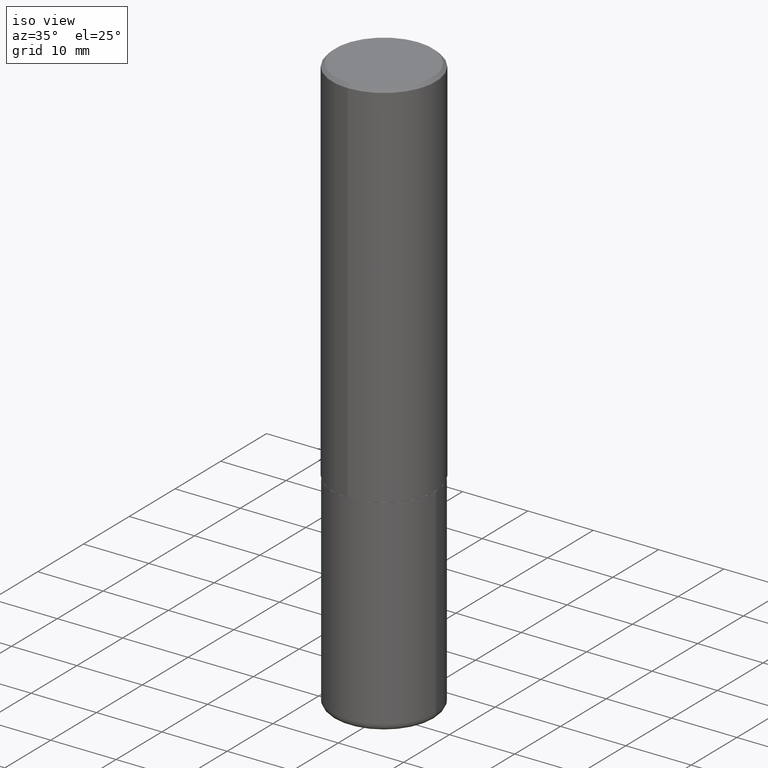
[diagram: clean part render]
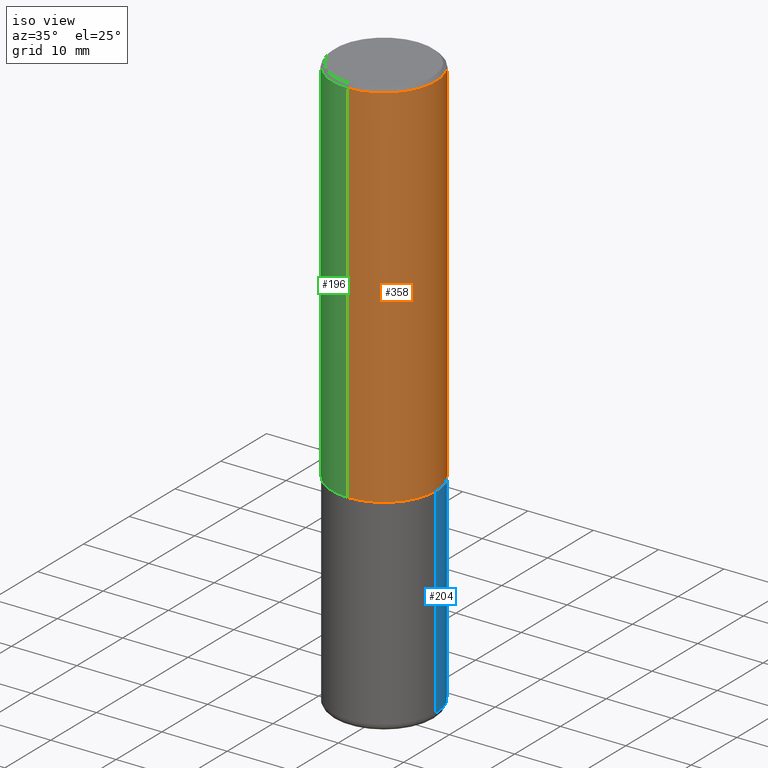
[diagram: same view with three faces highlighted in distinct colors, each labeled with its STEP entity id]
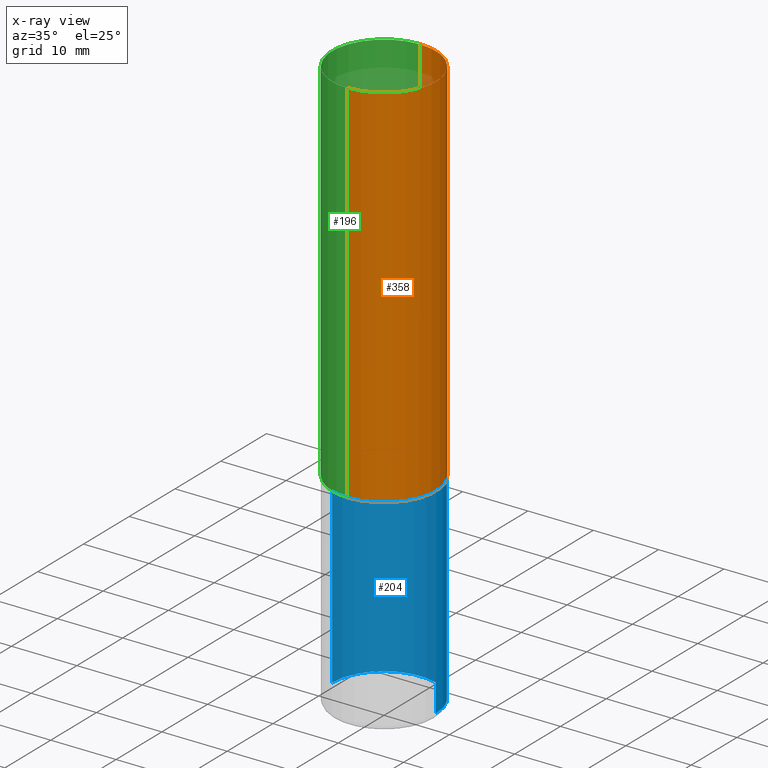
[diagram: x-ray of the same camera — body ghosted, the three highlighted faces saturated]
A machine part, iso view with three faces highlighted in distinct colors.
The next image is the same camera in x-ray (body ghosted, the three faces saturated) — at least one of them is partly hidden behind the body in this view.
Their STEP definitions:

[orange] entity #358 — the highlighted cylindrical surface (partial cylindrical patch) has radius 7.9375 mm, axis along (-0, 0, 1).
#20 = DIRECTION ( 'NONE',  ( -2.445739641102743317E-29, 3.491093487826166629E-15, 1.000000000000000000 ) ) ;
#28 = DIRECTION ( 'NONE',  ( -2.445739641102743317E-29, 3.491093487826166629E-15, 1.000000000000000000 ) ) ;
#70 = ORIENTED_EDGE ( 'NONE', *, *, #353, .F. ) ;
#72 = ORIENTED_EDGE ( 'NONE', *, *, #291, .F. ) ;
#81 = CARTESIAN_POINT ( 'NONE',  ( 5.500468452840068594E-29, -7.851469254121047133E-15, -2.248999999999999666 ) ) ;
#93 = EDGE_CURVE ( 'NONE', #333, #395, #417, .T. ) ;
#109 = DIRECTION ( 'NONE',  ( -2.445739641102743597E-29, 3.491093487826166629E-15, 1.000000000000000000 ) ) ;
#139 = AXIS2_PLACEMENT_3D ( 'NONE', #81, #215, #148 ) ;
#143 = LINE ( 'NONE', #216, #223 ) ;
#148 = DIRECTION ( 'NONE',  ( -6.982962677686265922E-15, -1.000000000000000000, 3.496765431890253764E-15 ) ) ;
#166 = VERTEX_POINT ( 'NONE', #263 ) ;
#172 = ORIENTED_EDGE ( 'NONE', *, *, #298, .T. ) ;
#210 = CARTESIAN_POINT ( 'NONE',  ( 4.891479282205503730E-31, -6.982186975652358107E-17, -0.02000000000000007327 ) ) ;
#213 = CARTESIAN_POINT ( 'NONE',  ( -2.182175836776905099E-15, -0.3125000000000081601, -2.248999999999998778 ) ) ;
#215 = DIRECTION ( 'NONE',  ( -2.445739641102743317E-29, 3.491093487826166629E-15, 1.000000000000000000 ) ) ;
#216 = CARTESIAN_POINT ( 'NONE',  ( -2.182175836776959530E-15, -0.3125000000000002220, 1.090966714945677910E-15 ) ) ;
#223 = VECTOR ( 'NONE', #109, 39.37007874015748143 ) ;
#237 = AXIS2_PLACEMENT_3D ( 'NONE', #210, #28, #316 ) ;
#243 = VERTEX_POINT ( 'NONE', #306 ) ;
#244 = LINE ( 'NONE', #349, #281 ) ;
#263 = CARTESIAN_POINT ( 'NONE',  ( 2.182175836776959530E-15, 0.3125000000000000555, -0.02000000000000116615 ) ) ;
#277 = DIRECTION ( 'NONE',  ( -6.982962677686265922E-15, -1.000000000000000000, 3.491093487826167023E-15 ) ) ;
#281 = VECTOR ( 'NONE', #313, 39.37007874015748143 ) ;
#291 = EDGE_CURVE ( 'NONE', #333, #243, #143, .T. ) ;
#295 = CIRCLE ( 'NONE', #237, 0.3125000000000001665 ) ;
#298 = EDGE_CURVE ( 'NONE', #395, #166, #244, .T. ) ;
#306 = CARTESIAN_POINT ( 'NONE',  ( -2.143905624303604008E-15, -0.3125000000000002220, -0.01999999999999898040 ) ) ;
#313 = DIRECTION ( 'NONE',  ( -2.445739641102743597E-29, 3.491093487826166629E-15, 1.000000000000000000 ) ) ;
#316 = DIRECTION ( 'NONE',  ( -6.982962677686265133E-15, -1.000000000000000000, 3.496765431890254947E-15 ) ) ;
#333 = VERTEX_POINT ( 'NONE', #213 ) ;
#335 = CARTESIAN_POINT ( 'NONE',  ( 2.220446049250342269E-15, 0.3124999999999924505, -2.249000000000000998 ) ) ;
#340 = FACE_OUTER_BOUND ( 'NONE', #397, .T. ) ;
#344 = CYLINDRICAL_SURFACE ( 'NONE', #386, 0.3125000000000002220 ) ;
#349 = CARTESIAN_POINT ( 'NONE',  ( 2.220446049250314264E-15, 0.3125000000000002220, -1.090966714945677910E-15 ) ) ;
#353 = EDGE_CURVE ( 'NONE', #243, #166, #295, .T. ) ;
#358 = ADVANCED_FACE ( 'NONE', ( #340 ), #344, .T. ) ;
#386 = AXIS2_PLACEMENT_3D ( 'NONE', #410, #20, #277 ) ;
#395 = VERTEX_POINT ( 'NONE', #335 ) ;
#396 = ORIENTED_EDGE ( 'NONE', *, *, #93, .T. ) ;
#397 = EDGE_LOOP ( 'NONE', ( #396, #172, #70, #72 ) ) ;
#410 = CARTESIAN_POINT ( 'NONE',  ( 0.000000000000000000, 0.000000000000000000, 0.000000000000000000 ) ) ;
#417 = CIRCLE ( 'NONE', #139, 0.3125000000000002776 ) ;

[blue] entity #204 — the highlighted cylindrical surface (partial cylindrical patch) has radius 7.9375 mm, axis along (-0, 0, 1).
#1 = EDGE_CURVE ( 'NONE', #256, #364, #97, .T. ) ;
#4 = VERTEX_POINT ( 'NONE', #272 ) ;
#25 = CARTESIAN_POINT ( 'NONE',  ( 0.3124999999999998890, -1.426270126917423794E-14, -3.459999999999999520 ) ) ;
#57 = VERTEX_POINT ( 'NONE', #25 ) ;
#62 = EDGE_CURVE ( 'NONE', #57, #256, #212, .T. ) ;
#64 = DIRECTION ( 'NONE',  ( -2.445468806185136597E-29, 3.491481338843145583E-15, 1.000000000000000000 ) ) ;
#69 = EDGE_LOOP ( 'NONE', ( #142, #305, #268, #221 ) ) ;
#90 = AXIS2_PLACEMENT_3D ( 'NONE', #352, #194, #123 ) ;
#97 = CIRCLE ( 'NONE', #191, 0.3125000000000000000 ) ;
#99 = CARTESIAN_POINT ( 'NONE',  ( 0.3125000000000000000, -1.003800884917403522E-14, -2.249999999999999556 ) ) ;
#103 = DIRECTION ( 'NONE',  ( -2.445468806185136877E-29, 3.491481338843145188E-15, 1.000000000000000000 ) ) ;
#112 = CARTESIAN_POINT ( 'NONE',  ( 5.502304813916556222E-29, -7.855833012397076871E-15, -2.249999999999999556 ) ) ;
#123 = DIRECTION ( 'NONE',  ( 1.000000000000000000, -6.982962677686264344E-15, 0.000000000000000000 ) ) ;
#142 = ORIENTED_EDGE ( 'NONE', *, *, #161, .T. ) ;
#146 = CARTESIAN_POINT ( 'NONE',  ( 0.3125000000000000000, -2.182175836776958347E-15, 1.523805242436230075E-29 ) ) ;
#147 = VECTOR ( 'NONE', #103, 39.37007874015748143 ) ;
#161 = EDGE_CURVE ( 'NONE', #57, #4, #278, .T. ) ;
#163 = CARTESIAN_POINT ( 'NONE',  ( -0.3125000000000000000, 2.220446049250313081E-15, -1.537167215704658232E-29 ) ) ;
#188 = CARTESIAN_POINT ( 'NONE',  ( -0.3125000000000000000, -7.747733173146866727E-15, -2.249999999999999556 ) ) ;
#191 = AXIS2_PLACEMENT_3D ( 'NONE', #112, #409, #282 ) ;
#194 = DIRECTION ( 'NONE',  ( -2.445468806185136597E-29, 3.491481338843145583E-15, 1.000000000000000000 ) ) ;
#195 = AXIS2_PLACEMENT_3D ( 'NONE', #355, #64, #225 ) ;
#204 = ADVANCED_FACE ( 'NONE', ( #285 ), #415, .T. ) ;
#212 = LINE ( 'NONE', #146, #341 ) ;
#221 = ORIENTED_EDGE ( 'NONE', *, *, #62, .F. ) ;
#225 = DIRECTION ( 'NONE',  ( 1.000000000000000000, -6.982962677686266711E-15, 4.876176775795936353E-29 ) ) ;
#246 = EDGE_CURVE ( 'NONE', #4, #364, #360, .T. ) ;
#256 = VERTEX_POINT ( 'NONE', #99 ) ;
#268 = ORIENTED_EDGE ( 'NONE', *, *, #1, .F. ) ;
#272 = CARTESIAN_POINT ( 'NONE',  ( -0.3124999999999998890, -9.860079383146968087E-15, -3.459999999999999520 ) ) ;
#278 = CIRCLE ( 'NONE', #90, 0.3124999999999999445 ) ;
#282 = DIRECTION ( 'NONE',  ( 1.000000000000000000, -6.982962677686269077E-15, 0.000000000000000000 ) ) ;
#285 = FACE_OUTER_BOUND ( 'NONE', #69, .T. ) ;
#305 = ORIENTED_EDGE ( 'NONE', *, *, #246, .T. ) ;
#315 = DIRECTION ( 'NONE',  ( -2.445468806185136877E-29, 3.491481338843145188E-15, 1.000000000000000000 ) ) ;
#341 = VECTOR ( 'NONE', #315, 39.37007874015748143 ) ;
#352 = CARTESIAN_POINT ( 'NONE',  ( 8.461322069400571907E-29, -1.208052543239728275E-14, -3.459999999999999520 ) ) ;
#355 = CARTESIAN_POINT ( 'NONE',  ( 0.000000000000000000, 0.000000000000000000, 0.000000000000000000 ) ) ;
#360 = LINE ( 'NONE', #163, #147 ) ;
#364 = VERTEX_POINT ( 'NONE', #188 ) ;
#409 = DIRECTION ( 'NONE',  ( -2.445468806185136597E-29, 3.491481338843145583E-15, 1.000000000000000000 ) ) ;
#415 = CYLINDRICAL_SURFACE ( 'NONE', #195, 0.3125000000000000000 ) ;

[green] entity #196 — the highlighted cylindrical surface (partial cylindrical patch) has radius 7.9375 mm, axis along (-0, 0, 1).
#19 = CARTESIAN_POINT ( 'NONE',  ( 4.891479282205503730E-31, -6.982186975652358107E-17, -0.02000000000000007327 ) ) ;
#31 = DIRECTION ( 'NONE',  ( -2.445739641102743317E-29, 3.491093487826166629E-15, 1.000000000000000000 ) ) ;
#46 = EDGE_LOOP ( 'NONE', ( #334, #135, #370, #404 ) ) ;
#50 = EDGE_CURVE ( 'NONE', #395, #333, #86, .T. ) ;
#80 = CARTESIAN_POINT ( 'NONE',  ( 5.500468452840068594E-29, -7.851469254121047133E-15, -2.248999999999999666 ) ) ;
#86 = CIRCLE ( 'NONE', #327, 0.3125000000000002776 ) ;
#107 = EDGE_CURVE ( 'NONE', #166, #243, #408, .T. ) ;
#109 = DIRECTION ( 'NONE',  ( -2.445739641102743597E-29, 3.491093487826166629E-15, 1.000000000000000000 ) ) ;
#117 = DIRECTION ( 'NONE',  ( -6.982962677686265133E-15, -1.000000000000000000, 3.496765431890254947E-15 ) ) ;
#135 = ORIENTED_EDGE ( 'NONE', *, *, #50, .T. ) ;
#140 = DIRECTION ( 'NONE',  ( -2.445739641102743317E-29, 3.491093487826166629E-15, 1.000000000000000000 ) ) ;
#143 = LINE ( 'NONE', #216, #223 ) ;
#145 = DIRECTION ( 'NONE',  ( -2.445739641102743317E-29, 3.491093487826166629E-15, 1.000000000000000000 ) ) ;
#153 = DIRECTION ( 'NONE',  ( -6.982962677686265922E-15, -1.000000000000000000, 3.491093487826167023E-15 ) ) ;
#166 = VERTEX_POINT ( 'NONE', #263 ) ;
#196 = ADVANCED_FACE ( 'NONE', ( #261 ), #320, .T. ) ;
#209 = DIRECTION ( 'NONE',  ( -6.982962677686265922E-15, -1.000000000000000000, 3.496765431890253764E-15 ) ) ;
#213 = CARTESIAN_POINT ( 'NONE',  ( -2.182175836776905099E-15, -0.3125000000000081601, -2.248999999999998778 ) ) ;
#216 = CARTESIAN_POINT ( 'NONE',  ( -2.182175836776959530E-15, -0.3125000000000002220, 1.090966714945677910E-15 ) ) ;
#223 = VECTOR ( 'NONE', #109, 39.37007874015748143 ) ;
#232 = AXIS2_PLACEMENT_3D ( 'NONE', #259, #31, #153 ) ;
#239 = AXIS2_PLACEMENT_3D ( 'NONE', #19, #145, #117 ) ;
#243 = VERTEX_POINT ( 'NONE', #306 ) ;
#244 = LINE ( 'NONE', #349, #281 ) ;
#259 = CARTESIAN_POINT ( 'NONE',  ( 0.000000000000000000, 0.000000000000000000, 0.000000000000000000 ) ) ;
#261 = FACE_OUTER_BOUND ( 'NONE', #46, .T. ) ;
#263 = CARTESIAN_POINT ( 'NONE',  ( 2.182175836776959530E-15, 0.3125000000000000555, -0.02000000000000116615 ) ) ;
#281 = VECTOR ( 'NONE', #313, 39.37007874015748143 ) ;
#291 = EDGE_CURVE ( 'NONE', #333, #243, #143, .T. ) ;
#298 = EDGE_CURVE ( 'NONE', #395, #166, #244, .T. ) ;
#306 = CARTESIAN_POINT ( 'NONE',  ( -2.143905624303604008E-15, -0.3125000000000002220, -0.01999999999999898040 ) ) ;
#313 = DIRECTION ( 'NONE',  ( -2.445739641102743597E-29, 3.491093487826166629E-15, 1.000000000000000000 ) ) ;
#320 = CYLINDRICAL_SURFACE ( 'NONE', #232, 0.3125000000000002220 ) ;
#327 = AXIS2_PLACEMENT_3D ( 'NONE', #80, #140, #209 ) ;
#333 = VERTEX_POINT ( 'NONE', #213 ) ;
#334 = ORIENTED_EDGE ( 'NONE', *, *, #298, .F. ) ;
#335 = CARTESIAN_POINT ( 'NONE',  ( 2.220446049250342269E-15, 0.3124999999999924505, -2.249000000000000998 ) ) ;
#349 = CARTESIAN_POINT ( 'NONE',  ( 2.220446049250314264E-15, 0.3125000000000002220, -1.090966714945677910E-15 ) ) ;
#370 = ORIENTED_EDGE ( 'NONE', *, *, #291, .T. ) ;
#395 = VERTEX_POINT ( 'NONE', #335 ) ;
#404 = ORIENTED_EDGE ( 'NONE', *, *, #107, .F. ) ;
#408 = CIRCLE ( 'NONE', #239, 0.3125000000000001665 ) ;